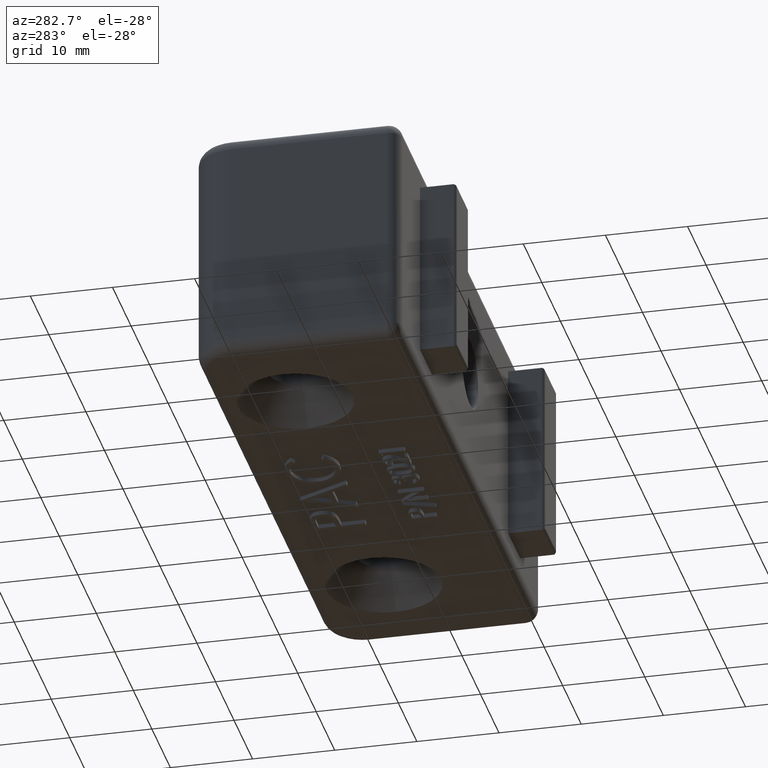
[diagram: clean part render]
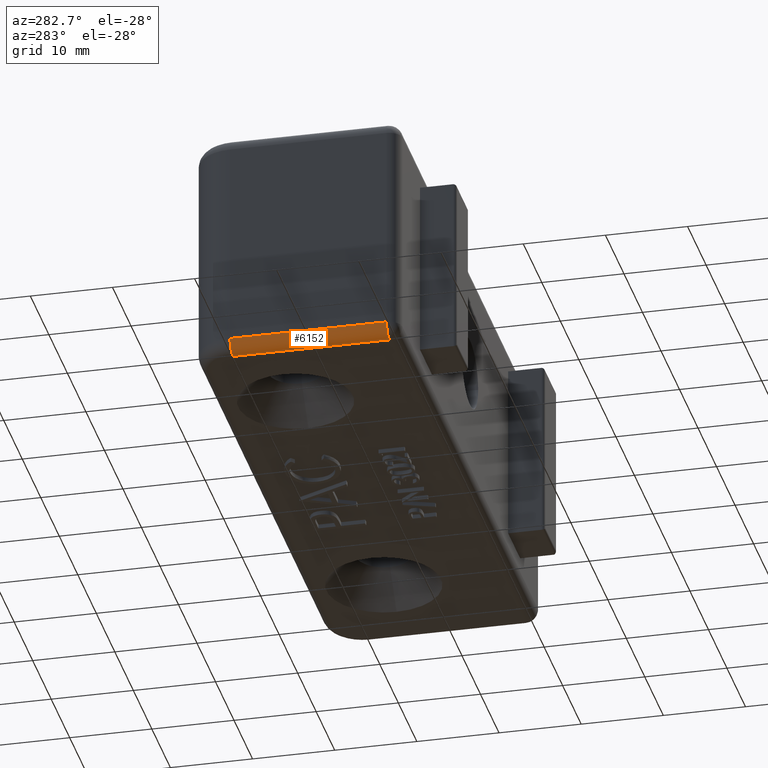
[diagram: same view with one face highlighted and labeled with its STEP entity id]
A machine part, auxiliary view. The second image highlights one B-rep face of the part: STEP entity #6152.
In plain terms, the highlighted cylindrical surface (edge-blend (fillet) strip) has radius 1.5875 mm, axis along (-0, -1, 0).
Its self-contained STEP definition (entity closure, byte-faithful):
#79 = VECTOR ( 'NONE', #937, 39.37007874015748100 ) ;
#178 = LINE ( 'NONE', #7714, #79 ) ;
#287 = AXIS2_PLACEMENT_3D ( 'NONE', #8603, #8606, #8607 ) ;
#290 = AXIS2_PLACEMENT_3D ( 'NONE', #8561, #8563, #8565 ) ;
#333 = AXIS2_PLACEMENT_3D ( 'NONE', #3528, #3527, #3525 ) ;
#633 = DIRECTION ( 'NONE',  ( -3.642463991552359800E-016, -1.000000000000000000, 0.0000000000000000000 ) ) ;
#635 = CARTESIAN_POINT ( 'NONE',  ( -1.500000000000000400, 0.06250000000000045800, -0.4999999999999999400 ) ) ;
#937 = DIRECTION ( 'NONE',  ( 3.642463991552359800E-016, 1.000000000000000000, -0.0000000000000000000 ) ) ;
#2075 = CARTESIAN_POINT ( 'NONE',  ( -1.437500000000000400, 0.06250000000000001400, -0.5625000000000000000 ) ) ;
#2163 = CARTESIAN_POINT ( 'NONE',  ( -1.500000000000000400, 0.06250000000000044400, -0.4999999999999999400 ) ) ;
#2294 = CARTESIAN_POINT ( 'NONE',  ( -1.500000000000000200, 0.8124999999999987800, -0.4999999999999999400 ) ) ;
#2324 = CARTESIAN_POINT ( 'NONE',  ( -1.437500000000000200, 0.8124999999999992200, -0.5625000000000000000 ) ) ;
#3525 = DIRECTION ( 'NONE',  ( 1.000000000000000000, -4.097771990496397800E-016, 0.0000000000000000000 ) ) ;
#3527 = DIRECTION ( 'NONE',  ( -3.642463991552359300E-016, -1.000000000000000000, 0.0000000000000000000 ) ) ;
#3528 = CARTESIAN_POINT ( 'NONE',  ( -1.437500000000000400, 0.06250000000000043000, -0.4999999999999999400 ) ) ;
#3716 = EDGE_CURVE ( 'NONE', #5104, #5046, #178, .T. ) ;
#4432 = FACE_OUTER_BOUND ( 'NONE', #10255, .T. ) ;
#4443 = CYLINDRICAL_SURFACE ( 'NONE', #333, 0.06249999999999995100 ) ;
#5038 = VERTEX_POINT ( 'NONE', #2294 ) ;
#5046 = VERTEX_POINT ( 'NONE', #2324 ) ;
#5059 = VERTEX_POINT ( 'NONE', #2163 ) ;
#5104 = VERTEX_POINT ( 'NONE', #2075 ) ;
#5501 = ORIENTED_EDGE ( 'NONE', *, *, #5863, .F. ) ;
#5502 = ORIENTED_EDGE ( 'NONE', *, *, #5962, .F. ) ;
#5503 = ORIENTED_EDGE ( 'NONE', *, *, #3716, .F. ) ;
#5533 = ORIENTED_EDGE ( 'NONE', *, *, #5968, .F. ) ;
#5863 = EDGE_CURVE ( 'NONE', #5038, #5059, #8250, .T. ) ;
#5962 = EDGE_CURVE ( 'NONE', #5046, #5038, #8549, .T. ) ;
#5968 = EDGE_CURVE ( 'NONE', #5059, #5104, #8568, .T. ) ;
#6152 = ADVANCED_FACE ( 'NONE', ( #4432 ), #4443, .T. ) ;
#7714 = CARTESIAN_POINT ( 'NONE',  ( -1.437500000000000400, 0.06250000000000104100, -0.5625000000000000000 ) ) ;
#8250 = LINE ( 'NONE', #635, #8251 ) ;
#8251 = VECTOR ( 'NONE', #633, 39.37007874015748100 ) ;
#8549 = CIRCLE ( 'NONE', #290, 0.06249999999999995100 ) ;
#8561 = CARTESIAN_POINT ( 'NONE',  ( -1.437500000000000200, 0.8124999999999992200, -0.5000000000000000000 ) ) ;
#8563 = DIRECTION ( 'NONE',  ( -6.556435184794237200E-015, 1.000000000000000000, 0.0000000000000000000 ) ) ;
#8565 = DIRECTION ( 'NONE',  ( -1.000000000000000000, -6.556435184794236500E-015, 0.0000000000000000000 ) ) ;
#8568 = CIRCLE ( 'NONE', #287, 0.06249999999999995100 ) ;
#8603 = CARTESIAN_POINT ( 'NONE',  ( -1.437500000000000400, 0.06250000000000041600, -0.4999999999999999400 ) ) ;
#8606 = DIRECTION ( 'NONE',  ( -4.097771990496398300E-016, -1.000000000000000000, -0.0000000000000000000 ) ) ;
#8607 = DIRECTION ( 'NONE',  ( 1.000000000000000000, -4.097771990496397800E-016, 0.0000000000000000000 ) ) ;
#10255 = EDGE_LOOP ( 'NONE', ( #5533, #5501, #5502, #5503 ) ) ;